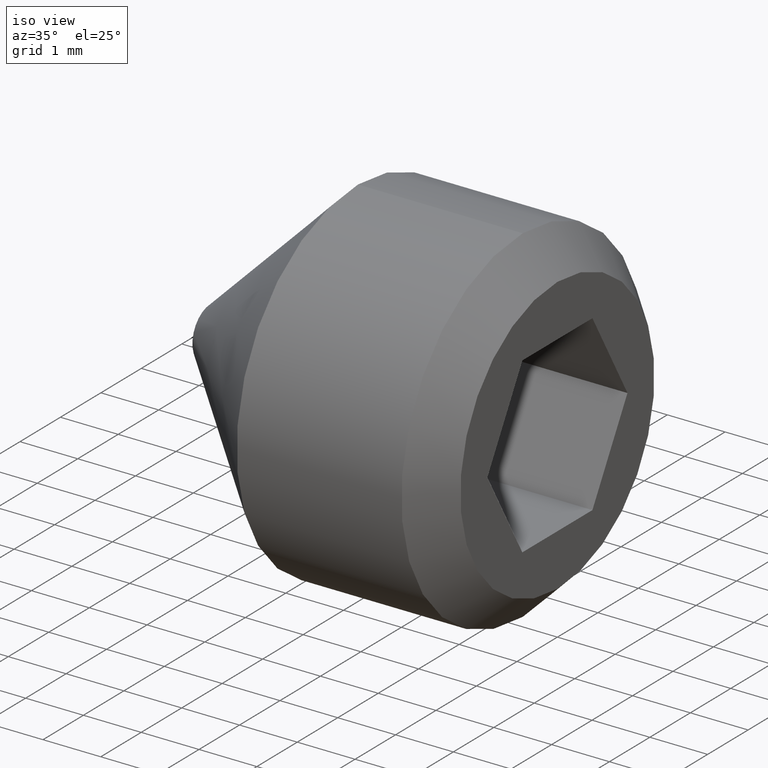
[diagram: clean part render]
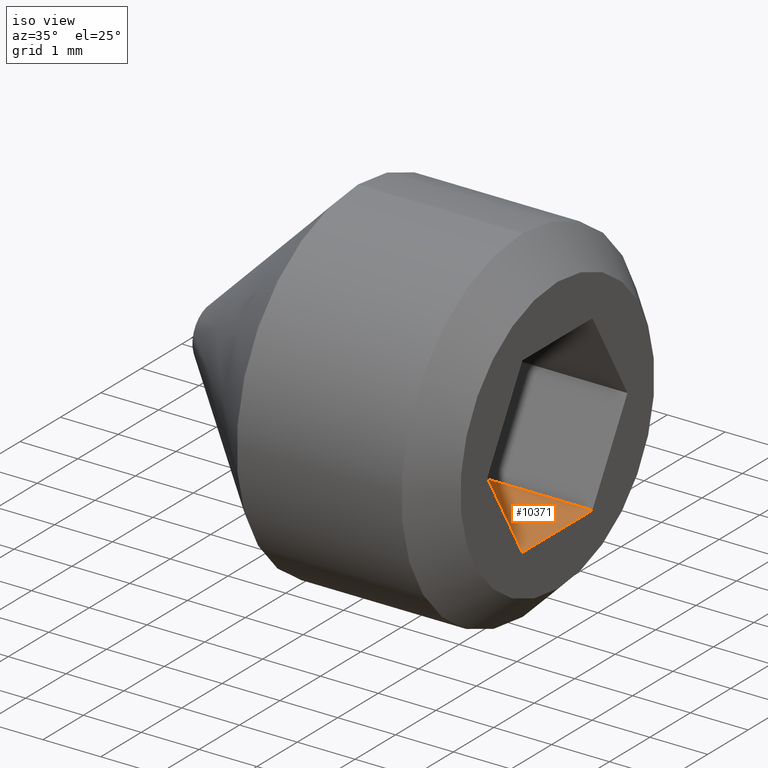
[diagram: same view with one face highlighted and labeled with its STEP entity id]
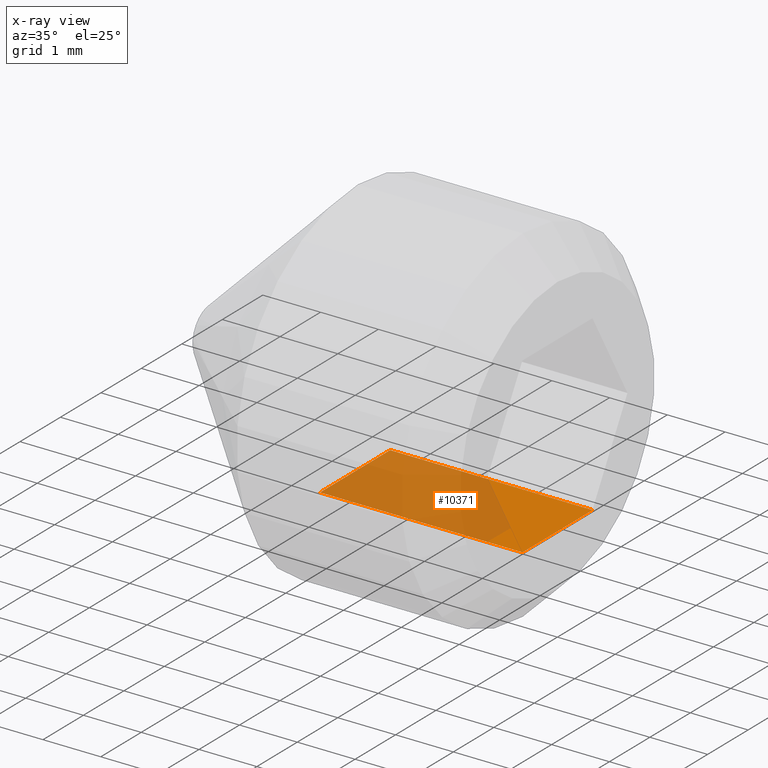
[diagram: x-ray of the same camera — body ghosted, the highlighted face saturated]
A machine part, iso view. The second image highlights one B-rep face of the part: STEP entity #10371.
The next image is the same camera in x-ray: the body ghosted, the highlighted face saturated — about 71% of this face is hidden behind the body in this view.
In plain terms, the highlighted planar face has unit normal (0, 0, -1).
Its self-contained STEP definition (entity closure, byte-faithful):
#232 = VECTOR ( 'NONE', #1134, 1000.000000000000000 ) ;
#316 = EDGE_LOOP ( 'NONE', ( #5122, #6142, #5892, #3719 ) ) ;
#635 = CARTESIAN_POINT ( 'NONE',  ( 2.500000000000000000, -0.8660254037844388200, -1.500000000000000000 ) ) ;
#1018 = EDGE_CURVE ( 'NONE', #6122, #8188, #5863, .T. ) ;
#1134 = DIRECTION ( 'NONE',  ( 1.000000000000000000, -0.0000000000000000000, 6.123031769111886300E-017 ) ) ;
#1603 = DIRECTION ( 'NONE',  ( 6.123031769111886300E-017, 0.0000000000000000000, -1.000000000000000000 ) ) ;
#2174 = VECTOR ( 'NONE', #7798, 1000.000000000000000 ) ;
#3719 = ORIENTED_EDGE ( 'NONE', *, *, #1018, .T. ) ;
#3749 = VERTEX_POINT ( 'NONE', #7335 ) ;
#3833 = AXIS2_PLACEMENT_3D ( 'NONE', #5896, #1603, #6711 ) ;
#4509 = LINE ( 'NONE', #4587, #232 ) ;
#4565 = VERTEX_POINT ( 'NONE', #5296 ) ;
#4587 = CARTESIAN_POINT ( 'NONE',  ( 2.500000000000000000, 0.8660254037844389300, -1.500000000000000000 ) ) ;
#4780 = CARTESIAN_POINT ( 'NONE',  ( 2.500000000000000000, -0.8660254037844388200, -1.500000000000000000 ) ) ;
#5122 = ORIENTED_EDGE ( 'NONE', *, *, #6823, .T. ) ;
#5296 = CARTESIAN_POINT ( 'NONE',  ( 2.500000000000000000, 0.8660254037844389300, -1.500000000000000000 ) ) ;
#5863 = LINE ( 'NONE', #635, #6256 ) ;
#5892 = ORIENTED_EDGE ( 'NONE', *, *, #9733, .F. ) ;
#5896 = CARTESIAN_POINT ( 'NONE',  ( 2.500000000000000000, -0.8660254037844388200, -1.500000000000000000 ) ) ;
#5948 = LINE ( 'NONE', #6974, #2174 ) ;
#6122 = VERTEX_POINT ( 'NONE', #6325 ) ;
#6142 = ORIENTED_EDGE ( 'NONE', *, *, #6902, .F. ) ;
#6256 = VECTOR ( 'NONE', #6606, 1000.000000000000000 ) ;
#6325 = CARTESIAN_POINT ( 'NONE',  ( 2.500000000000000000, -0.8660254037844388200, -1.500000000000000000 ) ) ;
#6397 = CARTESIAN_POINT ( 'NONE',  ( 6.000000000000000000, -0.8660254037844388200, -1.499999999999999800 ) ) ;
#6606 = DIRECTION ( 'NONE',  ( 1.000000000000000000, -0.0000000000000000000, 6.123031769111886300E-017 ) ) ;
#6711 = DIRECTION ( 'NONE',  ( -1.000000000000000000, 0.0000000000000000000, -6.123031769111886300E-017 ) ) ;
#6813 = LINE ( 'NONE', #4780, #9115 ) ;
#6823 = EDGE_CURVE ( 'NONE', #8188, #3749, #5948, .T. ) ;
#6902 = EDGE_CURVE ( 'NONE', #4565, #3749, #4509, .T. ) ;
#6974 = CARTESIAN_POINT ( 'NONE',  ( 6.000000000000000000, -0.8660254037844388200, -1.499999999999999800 ) ) ;
#7335 = CARTESIAN_POINT ( 'NONE',  ( 6.000000000000000000, 0.8660254037844389300, -1.499999999999999800 ) ) ;
#7413 = DIRECTION ( 'NONE',  ( 0.0000000000000000000, 1.000000000000000000, 0.0000000000000000000 ) ) ;
#7798 = DIRECTION ( 'NONE',  ( 0.0000000000000000000, 1.000000000000000000, 0.0000000000000000000 ) ) ;
#8188 = VERTEX_POINT ( 'NONE', #6397 ) ;
#9115 = VECTOR ( 'NONE', #7413, 1000.000000000000000 ) ;
#9733 = EDGE_CURVE ( 'NONE', #6122, #4565, #6813, .T. ) ;
#9938 = PLANE ( 'NONE',  #3833 ) ;
#10149 = FACE_OUTER_BOUND ( 'NONE', #316, .T. ) ;
#10371 = ADVANCED_FACE ( 'NONE', ( #10149 ), #9938, .F. ) ;